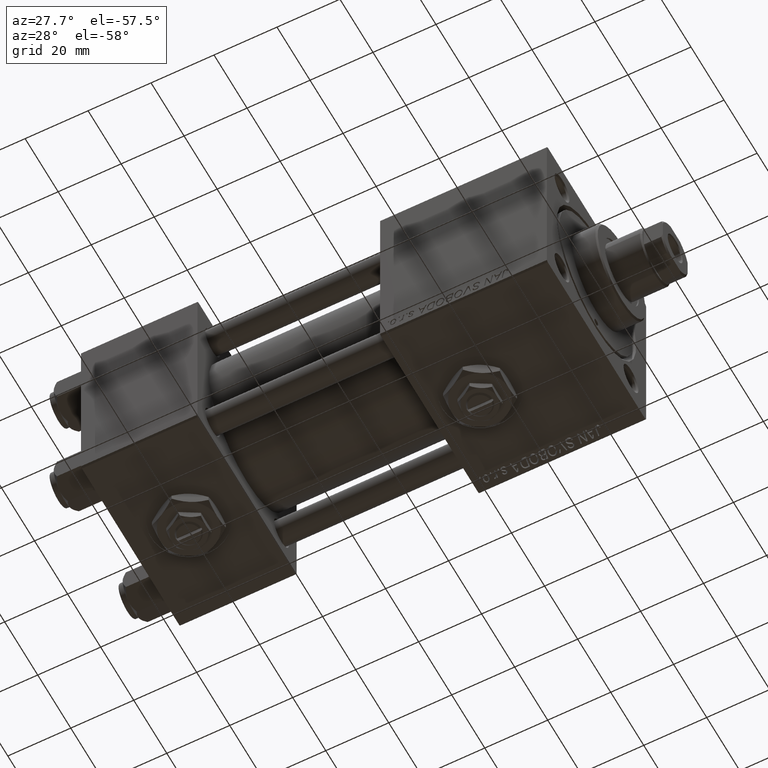
[diagram: clean part render]
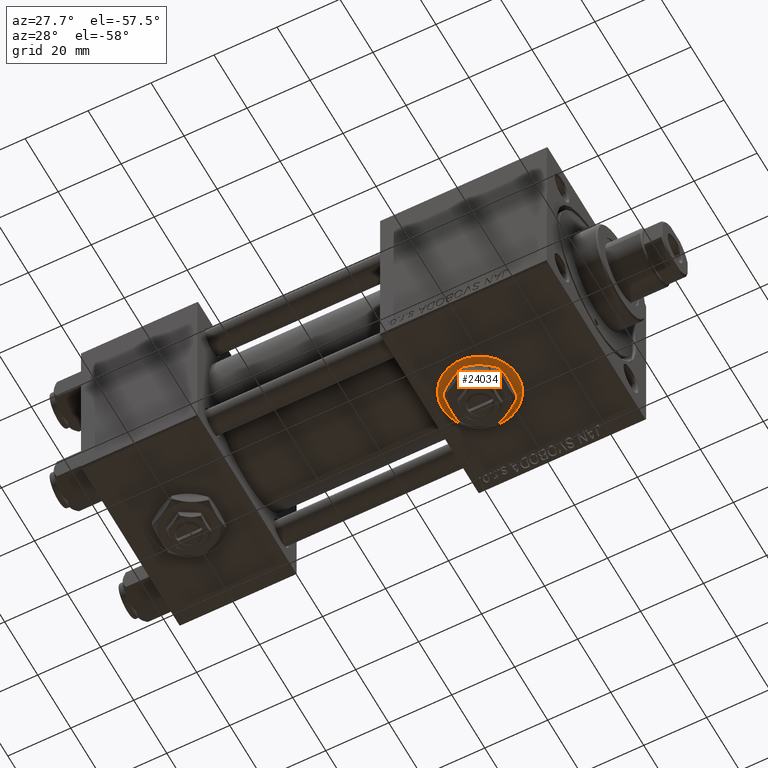
[diagram: same view with one face highlighted and labeled with its STEP entity id]
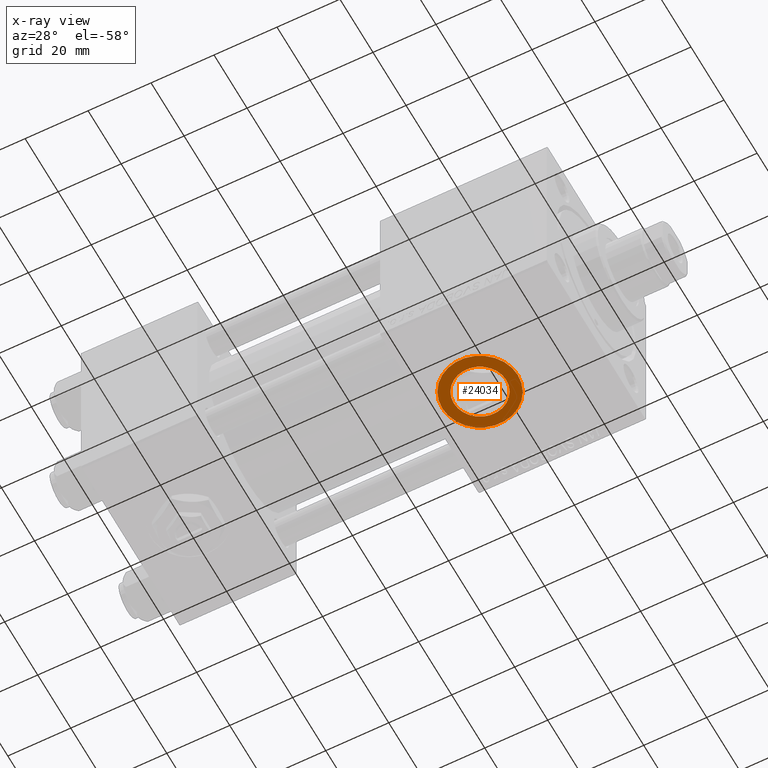
[diagram: x-ray of the same camera — body ghosted, the highlighted face saturated]
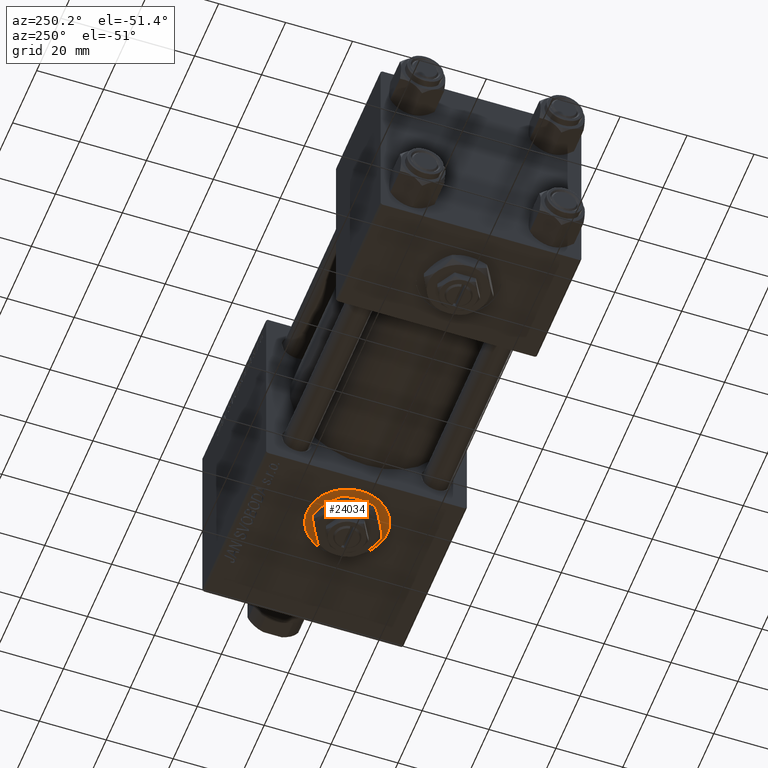
[diagram: same view with one face highlighted and labeled with its STEP entity id]
A machine part, auxiliary view. The second image highlights one B-rep face of the part: STEP entity #24034.
The next image is the same camera in x-ray: the body ghosted, the highlighted face saturated — about 0% of this face is hidden behind the body in this view.
A second angle (auxiliary view) of the same face is appended — the face is thin or edge-on in the first view.
In plain terms, the highlighted planar face has unit normal (0, 0, -1).
Its self-contained STEP definition (entity closure, byte-faithful):
#390 = CIRCLE ( 'NONE', #30033, 8.330000000000003624 ) ;
#1978 = EDGE_CURVE ( 'NONE', #50052, #22894, #40187, .T. ) ;
#2198 = CARTESIAN_POINT ( 'NONE',  ( 111.0000000000000000, 3.469446951953613794E-15, -29.79999999999999716 ) ) ;
#2763 = CARTESIAN_POINT ( 'NONE',  ( 123.0000000000000000, 4.939023110930435178E-15, -29.79999999999999716 ) ) ;
#5522 = AXIS2_PLACEMENT_3D ( 'NONE', #16579, #8104, #36721 ) ;
#7186 = ORIENTED_EDGE ( 'NONE', *, *, #44916, .F. ) ;
#8028 = AXIS2_PLACEMENT_3D ( 'NONE', #12422, #28596, #44773 ) ;
#8104 = DIRECTION ( 'NONE',  ( 0.000000000000000000, 0.000000000000000000, -1.000000000000000000 ) ) ;
#8744 = ORIENTED_EDGE ( 'NONE', *, *, #49026, .T. ) ;
#8896 = CARTESIAN_POINT ( 'NONE',  ( 99.00000000000000000, 3.469446951953613794E-15, -29.79999999999999716 ) ) ;
#9151 = EDGE_LOOP ( 'NONE', ( #39838, #8744 ) ) ;
#11948 = CARTESIAN_POINT ( 'NONE',  ( 111.0000000000000000, 3.469446951953613794E-15, -29.79999999999999716 ) ) ;
#12422 = CARTESIAN_POINT ( 'NONE',  ( 111.0000000000000000, 3.469446951953613794E-15, -29.79999999999999716 ) ) ;
#13984 = CIRCLE ( 'NONE', #5522, 11.99999999999999645 ) ;
#16055 = AXIS2_PLACEMENT_3D ( 'NONE', #2198, #31090, #42760 ) ;
#16579 = CARTESIAN_POINT ( 'NONE',  ( 111.0000000000000000, 3.469446951953613794E-15, -29.79999999999999716 ) ) ;
#20054 = EDGE_CURVE ( 'NONE', #44829, #27653, #33817, .T. ) ;
#22718 = CARTESIAN_POINT ( 'NONE',  ( 111.0000000000000000, 3.469446951953613794E-15, -29.79999999999999716 ) ) ;
#22894 = VERTEX_POINT ( 'NONE', #2763 ) ;
#24034 = ADVANCED_FACE ( 'NONE', ( #26863, #39047 ), #26600, .T. ) ;
#26600 = PLANE ( 'NONE',  #16055 ) ;
#26708 = DIRECTION ( 'NONE',  ( 0.000000000000000000, 0.000000000000000000, -1.000000000000000000 ) ) ;
#26863 = FACE_BOUND ( 'NONE', #37432, .T. ) ;
#27103 = DIRECTION ( 'NONE',  ( 0.000000000000000000, 0.000000000000000000, -1.000000000000000000 ) ) ;
#27653 = VERTEX_POINT ( 'NONE', #47329 ) ;
#28596 = DIRECTION ( 'NONE',  ( 0.000000000000000000, 0.000000000000000000, -1.000000000000000000 ) ) ;
#30016 = CARTESIAN_POINT ( 'NONE',  ( 119.3300000000000125, 4.489577735643358162E-15, -29.79999999999999716 ) ) ;
#30033 = AXIS2_PLACEMENT_3D ( 'NONE', #11948, #27103, #32366 ) ;
#30421 = DIRECTION ( 'NONE',  ( -1.000000000000000000, 0.000000000000000000, 0.000000000000000000 ) ) ;
#31090 = DIRECTION ( 'NONE',  ( 0.000000000000000000, 0.000000000000000000, -1.000000000000000000 ) ) ;
#32366 = DIRECTION ( 'NONE',  ( -1.000000000000000000, 0.000000000000000000, 0.000000000000000000 ) ) ;
#33817 = CIRCLE ( 'NONE', #40598, 8.330000000000003624 ) ;
#36721 = DIRECTION ( 'NONE',  ( -1.000000000000000000, 0.000000000000000000, 0.000000000000000000 ) ) ;
#37048 = ORIENTED_EDGE ( 'NONE', *, *, #20054, .F. ) ;
#37432 = EDGE_LOOP ( 'NONE', ( #7186, #37048 ) ) ;
#39047 = FACE_OUTER_BOUND ( 'NONE', #9151, .T. ) ;
#39838 = ORIENTED_EDGE ( 'NONE', *, *, #1978, .T. ) ;
#40187 = CIRCLE ( 'NONE', #8028, 11.99999999999999645 ) ;
#40598 = AXIS2_PLACEMENT_3D ( 'NONE', #22718, #26708, #30421 ) ;
#42760 = DIRECTION ( 'NONE',  ( -1.000000000000000000, 0.000000000000000000, -0.000000000000000000 ) ) ;
#44773 = DIRECTION ( 'NONE',  ( -1.000000000000000000, 0.000000000000000000, 0.000000000000000000 ) ) ;
#44829 = VERTEX_POINT ( 'NONE', #30016 ) ;
#44916 = EDGE_CURVE ( 'NONE', #27653, #44829, #390, .T. ) ;
#47329 = CARTESIAN_POINT ( 'NONE',  ( 102.6700000000000017, 3.469446951953613794E-15, -29.79999999999999716 ) ) ;
#49026 = EDGE_CURVE ( 'NONE', #22894, #50052, #13984, .T. ) ;
#50052 = VERTEX_POINT ( 'NONE', #8896 ) ;